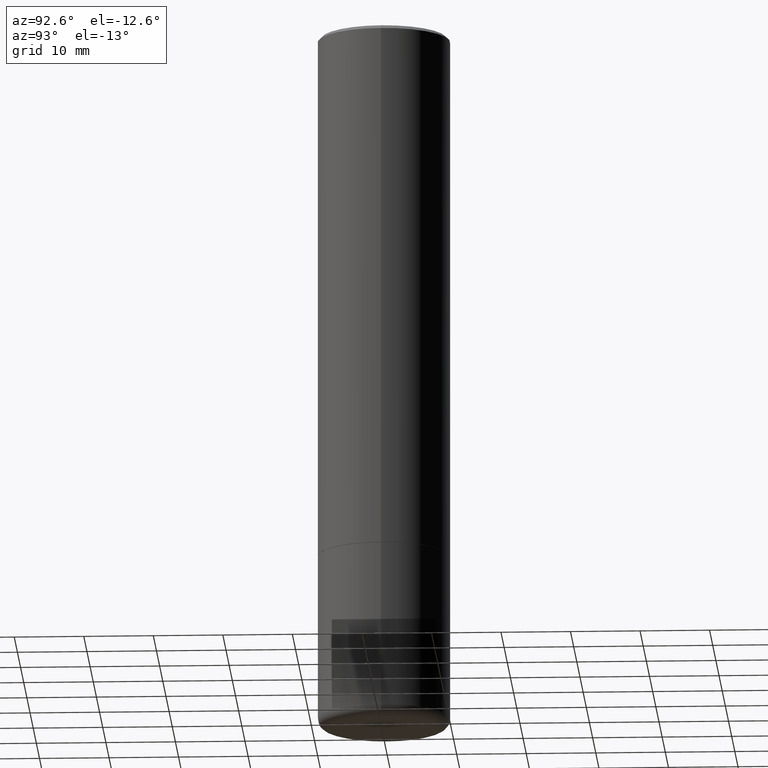
[diagram: clean part render]
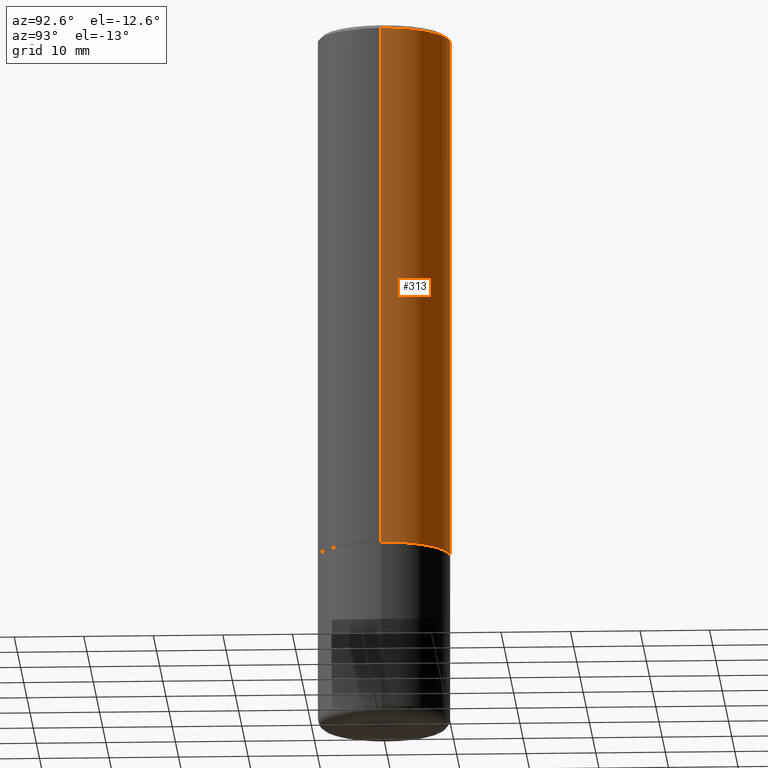
[diagram: same view with one face highlighted and labeled with its STEP entity id]
A machine part, auxiliary view. The second image highlights one B-rep face of the part: STEP entity #313.
In plain terms, the highlighted cylindrical surface (partial cylindrical patch) has radius 9.525 mm, axis along (-0, 0, 1).
Its self-contained STEP definition (entity closure, byte-faithful):
#2 = DIRECTION ( 'NONE',  ( -2.445468806185136597E-29, 3.491481338843145583E-15, 1.000000000000000000 ) ) ;
#14 = VERTEX_POINT ( 'NONE', #78 ) ;
#15 = EDGE_CURVE ( 'NONE', #421, #14, #221, .T. ) ;
#26 = DIRECTION ( 'NONE',  ( -2.445468806185136877E-29, 3.491481338843145188E-15, 1.000000000000000000 ) ) ;
#27 = DIRECTION ( 'NONE',  ( 1.000000000000000000, -6.982962677686266711E-15, 0.000000000000000000 ) ) ;
#32 = DIRECTION ( 'NONE',  ( -2.445468806185136597E-29, 3.491481338843145583E-15, 1.000000000000000000 ) ) ;
#35 = CARTESIAN_POINT ( 'NONE',  ( -0.3749999999999993894, -2.605855821883354597E-15, -2.999000000000000554 ) ) ;
#40 = CARTESIAN_POINT ( 'NONE',  ( 4.890937612370327459E-31, -6.982962677686369262E-17, -0.02000000000000022246 ) ) ;
#41 = CARTESIAN_POINT ( 'NONE',  ( 0.3749999999999995004, -1.308956353932294179E-14, -2.999000000000000554 ) ) ;
#47 = AXIS2_PLACEMENT_3D ( 'NONE', #415, #2, #189 ) ;
#59 = EDGE_CURVE ( 'NONE', #89, #14, #150, .T. ) ;
#78 = CARTESIAN_POINT ( 'NONE',  ( -0.3749999999999991673, 2.548781377355480407E-15, -0.02000000000000022246 ) ) ;
#89 = VERTEX_POINT ( 'NONE', #324 ) ;
#104 = DIRECTION ( 'NONE',  ( 1.000000000000000000, -6.982962677686267499E-15, 4.876176775795935232E-29 ) ) ;
#121 = ORIENTED_EDGE ( 'NONE', *, *, #59, .F. ) ;
#136 = LINE ( 'NONE', #442, #374 ) ;
#150 = CIRCLE ( 'NONE', #459, 0.3749999999999991673 ) ;
#165 = CIRCLE ( 'NONE', #47, 0.3749999999999995004 ) ;
#189 = DIRECTION ( 'NONE',  ( 1.000000000000000000, -6.982962677686266711E-15, 0.000000000000000000 ) ) ;
#203 = ORIENTED_EDGE ( 'NONE', *, *, #15, .T. ) ;
#215 = FACE_OUTER_BOUND ( 'NONE', #445, .T. ) ;
#221 = LINE ( 'NONE', #382, #418 ) ;
#271 = ORIENTED_EDGE ( 'NONE', *, *, #314, .F. ) ;
#292 = CYLINDRICAL_SURFACE ( 'NONE', #297, 0.3749999999999992784 ) ;
#297 = AXIS2_PLACEMENT_3D ( 'NONE', #470, #467, #104 ) ;
#313 = ADVANCED_FACE ( 'NONE', ( #215 ), #292, .T. ) ;
#314 = EDGE_CURVE ( 'NONE', #391, #89, #136, .T. ) ;
#324 = CARTESIAN_POINT ( 'NONE',  ( 0.3749999999999991673, -2.642516375941182112E-15, -0.02000000000000022246 ) ) ;
#374 = VECTOR ( 'NONE', #26, 39.37007874015748143 ) ;
#375 = EDGE_CURVE ( 'NONE', #391, #421, #165, .T. ) ;
#382 = CARTESIAN_POINT ( 'NONE',  ( -0.3749999999999992784, 2.664535259100370569E-15, -1.844600658845586235E-29 ) ) ;
#391 = VERTEX_POINT ( 'NONE', #41 ) ;
#415 = CARTESIAN_POINT ( 'NONE',  ( 7.333960949749226429E-29, -1.047095253519059492E-14, -2.999000000000000554 ) ) ;
#418 = VECTOR ( 'NONE', #463, 39.37007874015748143 ) ;
#421 = VERTEX_POINT ( 'NONE', #35 ) ;
#442 = CARTESIAN_POINT ( 'NONE',  ( 0.3749999999999992784, -2.618611004132345283E-15, 1.828566290923472279E-29 ) ) ;
#445 = EDGE_LOOP ( 'NONE', ( #465, #203, #121, #271 ) ) ;
#459 = AXIS2_PLACEMENT_3D ( 'NONE', #40, #32, #27 ) ;
#463 = DIRECTION ( 'NONE',  ( -2.445468806185136877E-29, 3.491481338843145188E-15, 1.000000000000000000 ) ) ;
#465 = ORIENTED_EDGE ( 'NONE', *, *, #375, .T. ) ;
#467 = DIRECTION ( 'NONE',  ( -2.445468806185136597E-29, 3.491481338843145583E-15, 1.000000000000000000 ) ) ;
#470 = CARTESIAN_POINT ( 'NONE',  ( 0.000000000000000000, 0.000000000000000000, 0.000000000000000000 ) ) ;